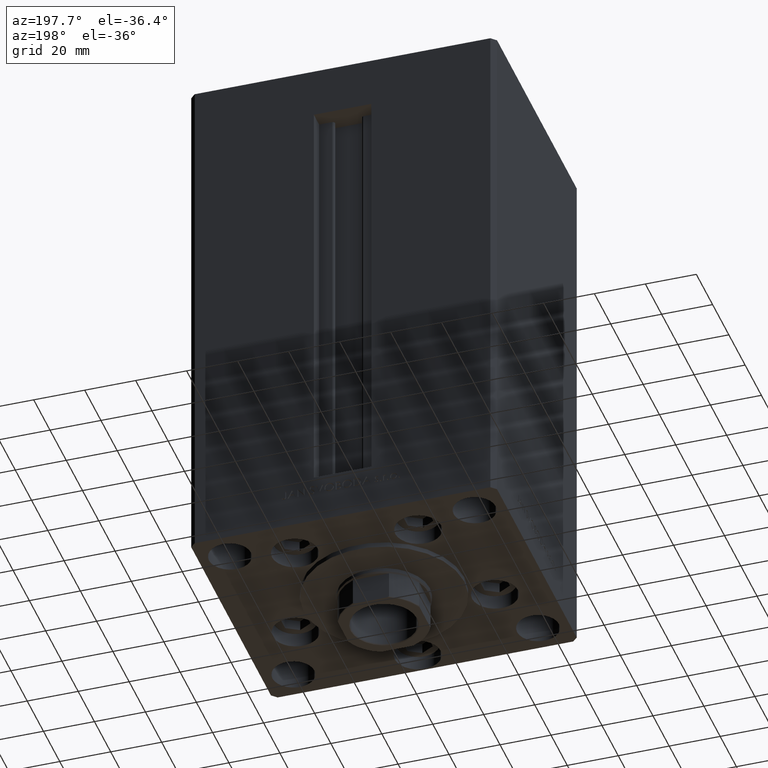
[diagram: clean part render]
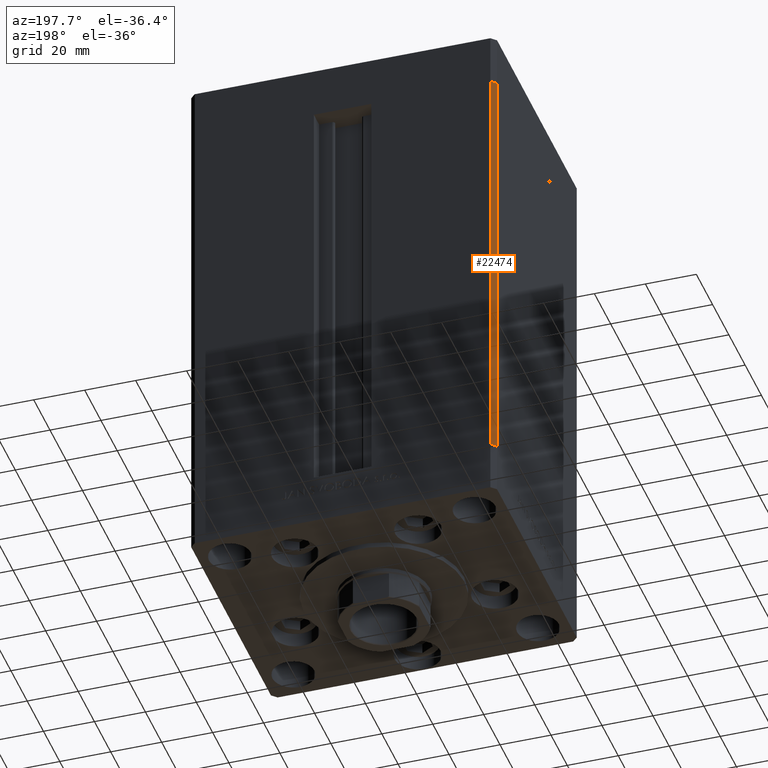
[diagram: same view with one face highlighted and labeled with its STEP entity id]
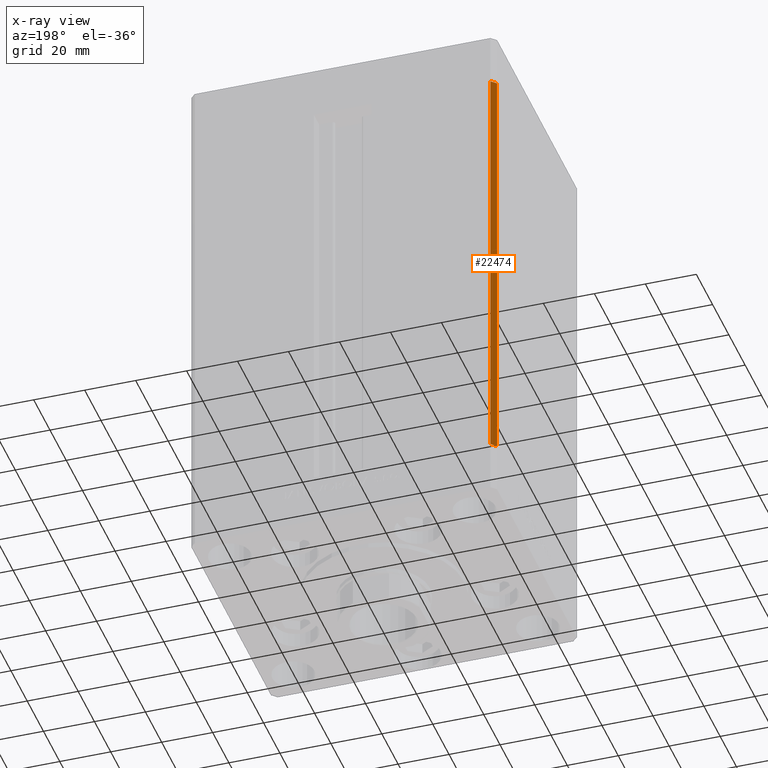
[diagram: x-ray of the same camera — body ghosted, the highlighted face saturated]
A machine part, auxiliary view. The second image highlights one B-rep face of the part: STEP entity #22474.
The next image is the same camera in x-ray: the body ghosted, the highlighted face saturated — about 0% of this face is hidden behind the body in this view.
In plain terms, the highlighted planar face has unit normal (0.7071, -0.7071, 0).
Its self-contained STEP definition (entity closure, byte-faithful):
#1405 = VECTOR ( 'NONE', #33443, 1000.000000000000000 ) ;
#1432 = CARTESIAN_POINT ( 'NONE',  ( -60.00000000000001421, 49.00000000000000000, 168.5000000000000000 ) ) ;
#1467 = CARTESIAN_POINT ( 'NONE',  ( -57.99999999999999289, 51.00000000000000711, 0.000000000000000000 ) ) ;
#1759 = DIRECTION ( 'NONE',  ( 0.7071067811865451302, -0.7071067811865500152, 0.000000000000000000 ) ) ;
#2005 = DIRECTION ( 'NONE',  ( 0.7071067811865500152, 0.7071067811865451302, 0.000000000000000000 ) ) ;
#3104 = CARTESIAN_POINT ( 'NONE',  ( -57.99999999999999289, 51.00000000000000711, 168.5000000000000000 ) ) ;
#3809 = DIRECTION ( 'NONE',  ( -0.7071067811865500152, -0.7071067811865451302, 0.000000000000000000 ) ) ;
#5472 = VERTEX_POINT ( 'NONE', #48004 ) ;
#8267 = AXIS2_PLACEMENT_3D ( 'NONE', #43517, #1759, #2005 ) ;
#10305 = CARTESIAN_POINT ( 'NONE',  ( -57.99999999999999289, 51.00000000000000711, 0.000000000000000000 ) ) ;
#11426 = VERTEX_POINT ( 'NONE', #17228 ) ;
#12688 = DIRECTION ( 'NONE',  ( -0.7071067811865500152, -0.7071067811865451302, 0.000000000000000000 ) ) ;
#13607 = LINE ( 'NONE', #1432, #42699 ) ;
#14995 = EDGE_CURVE ( 'NONE', #31778, #5472, #22696, .T. ) ;
#17228 = CARTESIAN_POINT ( 'NONE',  ( -60.00000000000001421, 49.00000000000000000, 168.5000000000000000 ) ) ;
#17591 = DIRECTION ( 'NONE',  ( -0.000000000000000000, -0.000000000000000000, -1.000000000000000000 ) ) ;
#18293 = CARTESIAN_POINT ( 'NONE',  ( -57.99999999999999289, 51.00000000000000711, 168.5000000000000000 ) ) ;
#21314 = VECTOR ( 'NONE', #12688, 1000.000000000000114 ) ;
#22474 = ADVANCED_FACE ( 'NONE', ( #36069 ), #32340, .F. ) ;
#22696 = LINE ( 'NONE', #10305, #23100 ) ;
#23100 = VECTOR ( 'NONE', #3809, 1000.000000000000114 ) ;
#23981 = VERTEX_POINT ( 'NONE', #18293 ) ;
#25253 = EDGE_LOOP ( 'NONE', ( #27447, #41505, #40904, #27619 ) ) ;
#27447 = ORIENTED_EDGE ( 'NONE', *, *, #14995, .T. ) ;
#27619 = ORIENTED_EDGE ( 'NONE', *, *, #34856, .T. ) ;
#31778 = VERTEX_POINT ( 'NONE', #1467 ) ;
#32340 = PLANE ( 'NONE',  #8267 ) ;
#33443 = DIRECTION ( 'NONE',  ( -0.000000000000000000, -0.000000000000000000, -1.000000000000000000 ) ) ;
#34856 = EDGE_CURVE ( 'NONE', #23981, #31778, #37169, .T. ) ;
#35649 = EDGE_CURVE ( 'NONE', #11426, #5472, #13607, .T. ) ;
#36069 = FACE_OUTER_BOUND ( 'NONE', #25253, .T. ) ;
#37169 = LINE ( 'NONE', #3104, #1405 ) ;
#37615 = EDGE_CURVE ( 'NONE', #23981, #11426, #43524, .T. ) ;
#39552 = CARTESIAN_POINT ( 'NONE',  ( -57.99999999999999289, 51.00000000000000711, 168.5000000000000000 ) ) ;
#40904 = ORIENTED_EDGE ( 'NONE', *, *, #37615, .F. ) ;
#41505 = ORIENTED_EDGE ( 'NONE', *, *, #35649, .F. ) ;
#42699 = VECTOR ( 'NONE', #17591, 1000.000000000000000 ) ;
#43517 = CARTESIAN_POINT ( 'NONE',  ( -57.99999999999999289, 51.00000000000000711, 168.5000000000000000 ) ) ;
#43524 = LINE ( 'NONE', #39552, #21314 ) ;
#48004 = CARTESIAN_POINT ( 'NONE',  ( -60.00000000000001421, 49.00000000000000000, 0.000000000000000000 ) ) ;